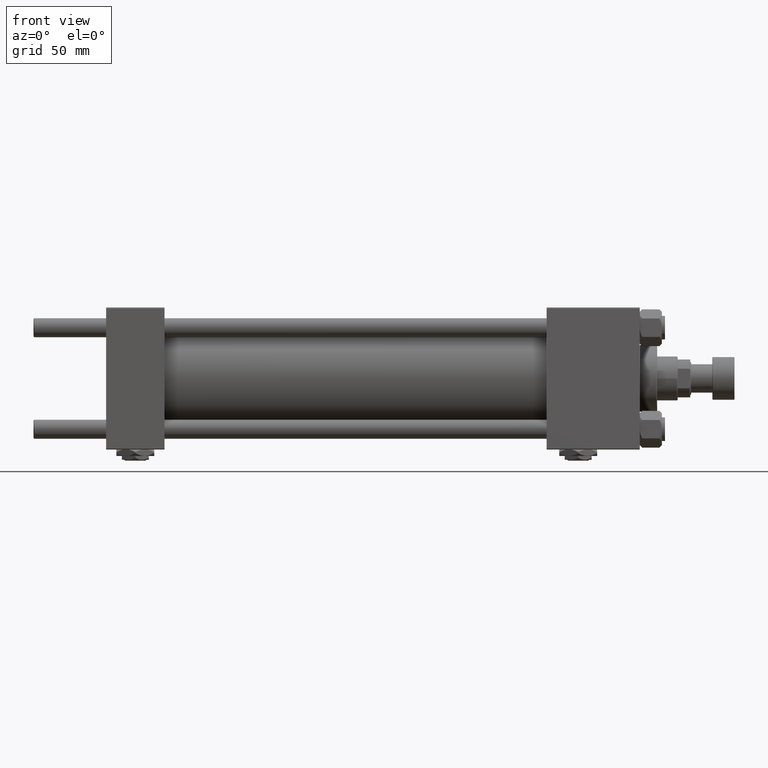
[diagram: clean part render]
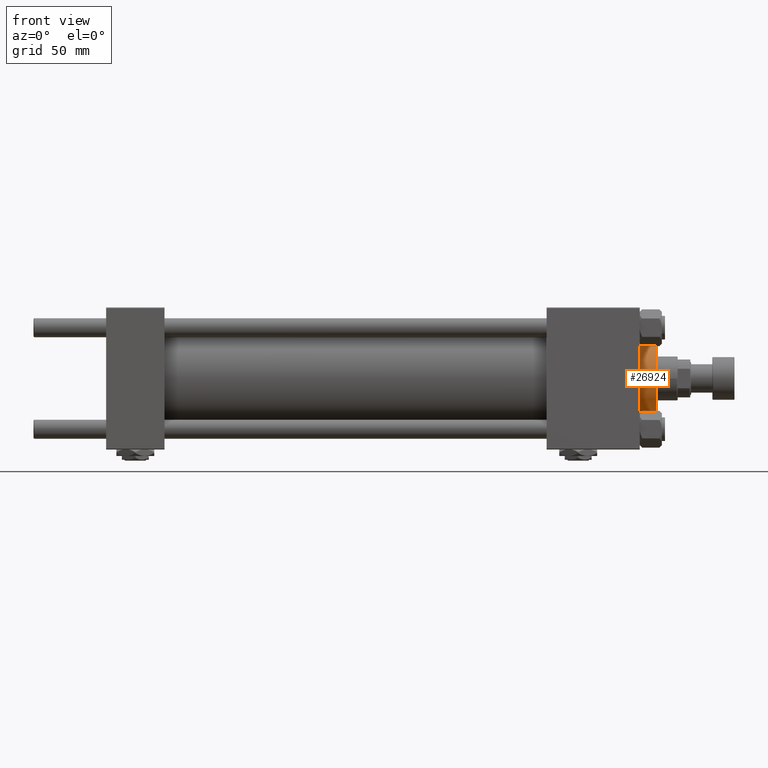
[diagram: same view with one face highlighted and labeled with its STEP entity id]
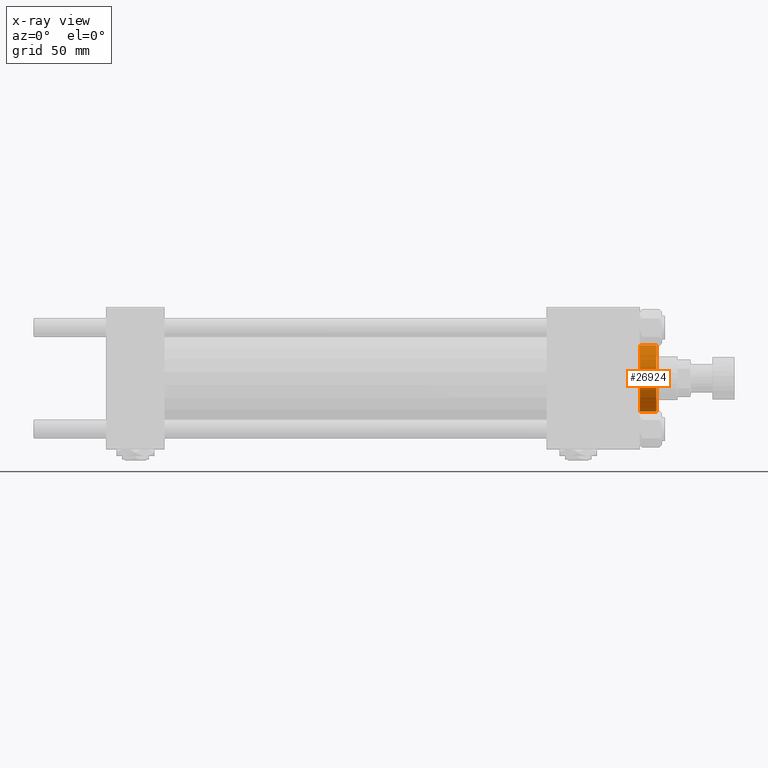
[diagram: x-ray of the same camera — body ghosted, the highlighted face saturated]
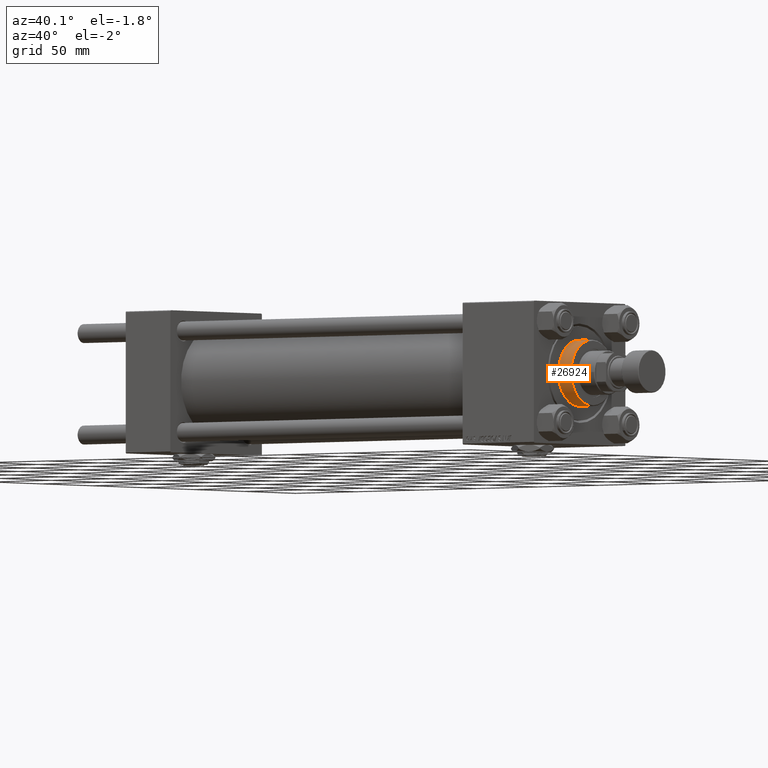
[diagram: same view with one face highlighted and labeled with its STEP entity id]
A machine part, front view. The second image highlights one B-rep face of the part: STEP entity #26924.
The next image is the same camera in x-ray: the body ghosted, the highlighted face saturated — about 0% of this face is hidden behind the body in this view.
A second angle (auxiliary view) of the same face is appended — the face is thin or edge-on in the first view.
In plain terms, the highlighted cylindrical surface (edge-blend (fillet) strip) has radius 21 mm, axis along (-1, -0, 0).
Its self-contained STEP definition (entity closure, byte-faithful):
#315 = CARTESIAN_POINT ( 'NONE',  ( 0.000000000000000000, 0.000000000000000000, 39.19999999999999574 ) ) ;
#2244 = CIRCLE ( 'NONE', #32712, 21.00000000000000000 ) ;
#2555 = VERTEX_POINT ( 'NONE', #51121 ) ;
#4995 = VERTEX_POINT ( 'NONE', #22734 ) ;
#6522 = EDGE_LOOP ( 'NONE', ( #51278, #39669, #17354, #37076 ) ) ;
#9330 = CARTESIAN_POINT ( 'NONE',  ( 21.00000000000000000, 2.571758278209441661E-15, 39.69999999999999574 ) ) ;
#11428 = DIRECTION ( 'NONE',  ( 0.000000000000000000, 0.000000000000000000, -1.000000000000000000 ) ) ;
#11681 = DIRECTION ( 'NONE',  ( 1.000000000000000000, 0.000000000000000000, 0.000000000000000000 ) ) ;
#12570 = DIRECTION ( 'NONE',  ( -0.000000000000000000, -0.000000000000000000, -1.000000000000000000 ) ) ;
#16602 = CIRCLE ( 'NONE', #38537, 21.00000000000000000 ) ;
#16796 = CARTESIAN_POINT ( 'NONE',  ( 0.000000000000000000, 0.000000000000000000, 39.69999999999999574 ) ) ;
#17354 = ORIENTED_EDGE ( 'NONE', *, *, #33339, .T. ) ;
#17525 = DIRECTION ( 'NONE',  ( -0.000000000000000000, -0.000000000000000000, -1.000000000000000000 ) ) ;
#18529 = VECTOR ( 'NONE', #50199, 1000.000000000000000 ) ;
#19037 = EDGE_CURVE ( 'NONE', #4995, #2555, #16602, .T. ) ;
#19975 = CARTESIAN_POINT ( 'NONE',  ( 21.00000000000000000, 2.571758278209441661E-15, 28.69999999999999929 ) ) ;
#21084 = CARTESIAN_POINT ( 'NONE',  ( -21.00000000000000000, 0.000000000000000000, 28.69999999999999929 ) ) ;
#22734 = CARTESIAN_POINT ( 'NONE',  ( 21.00000000000000000, 2.571758278209441661E-15, 39.19999999999999574 ) ) ;
#23480 = EDGE_CURVE ( 'NONE', #25577, #35310, #2244, .T. ) ;
#24736 = DIRECTION ( 'NONE',  ( -1.000000000000000000, 0.000000000000000000, 0.000000000000000000 ) ) ;
#25268 = FACE_OUTER_BOUND ( 'NONE', #6522, .T. ) ;
#25577 = VERTEX_POINT ( 'NONE', #21084 ) ;
#26307 = CARTESIAN_POINT ( 'NONE',  ( 0.000000000000000000, 0.000000000000000000, 28.69999999999999929 ) ) ;
#26924 = ADVANCED_FACE ( 'NONE', ( #25268 ), #48815, .T. ) ;
#26943 = CARTESIAN_POINT ( 'NONE',  ( -21.00000000000000000, 0.000000000000000000, 39.69999999999999574 ) ) ;
#28444 = EDGE_CURVE ( 'NONE', #4995, #35310, #45326, .T. ) ;
#30319 = AXIS2_PLACEMENT_3D ( 'NONE', #16796, #12570, #24736 ) ;
#32093 = DIRECTION ( 'NONE',  ( 1.000000000000000000, 0.000000000000000000, 0.000000000000000000 ) ) ;
#32712 = AXIS2_PLACEMENT_3D ( 'NONE', #26307, #43430, #11681 ) ;
#33339 = EDGE_CURVE ( 'NONE', #2555, #25577, #34083, .T. ) ;
#34083 = LINE ( 'NONE', #26943, #18529 ) ;
#35310 = VERTEX_POINT ( 'NONE', #19975 ) ;
#36239 = VECTOR ( 'NONE', #17525, 1000.000000000000000 ) ;
#37076 = ORIENTED_EDGE ( 'NONE', *, *, #23480, .T. ) ;
#38537 = AXIS2_PLACEMENT_3D ( 'NONE', #315, #11428, #32093 ) ;
#39669 = ORIENTED_EDGE ( 'NONE', *, *, #19037, .T. ) ;
#43430 = DIRECTION ( 'NONE',  ( 0.000000000000000000, 0.000000000000000000, 1.000000000000000000 ) ) ;
#45326 = LINE ( 'NONE', #9330, #36239 ) ;
#48815 = CYLINDRICAL_SURFACE ( 'NONE', #30319, 21.00000000000000000 ) ;
#50199 = DIRECTION ( 'NONE',  ( -0.000000000000000000, -0.000000000000000000, -1.000000000000000000 ) ) ;
#51121 = CARTESIAN_POINT ( 'NONE',  ( -21.00000000000000000, 0.000000000000000000, 39.19999999999999574 ) ) ;
#51278 = ORIENTED_EDGE ( 'NONE', *, *, #28444, .F. ) ;